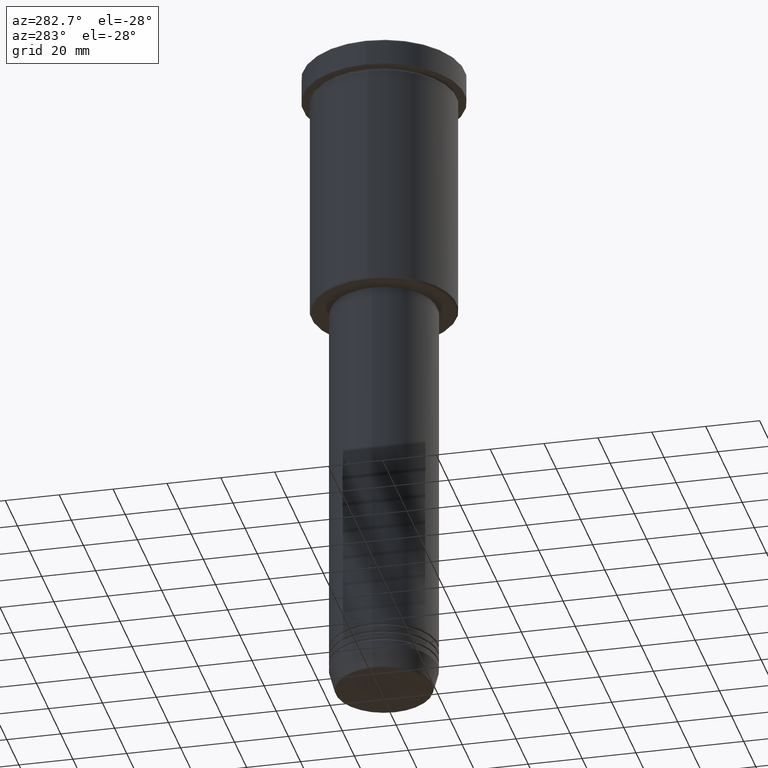
[diagram: clean part render]
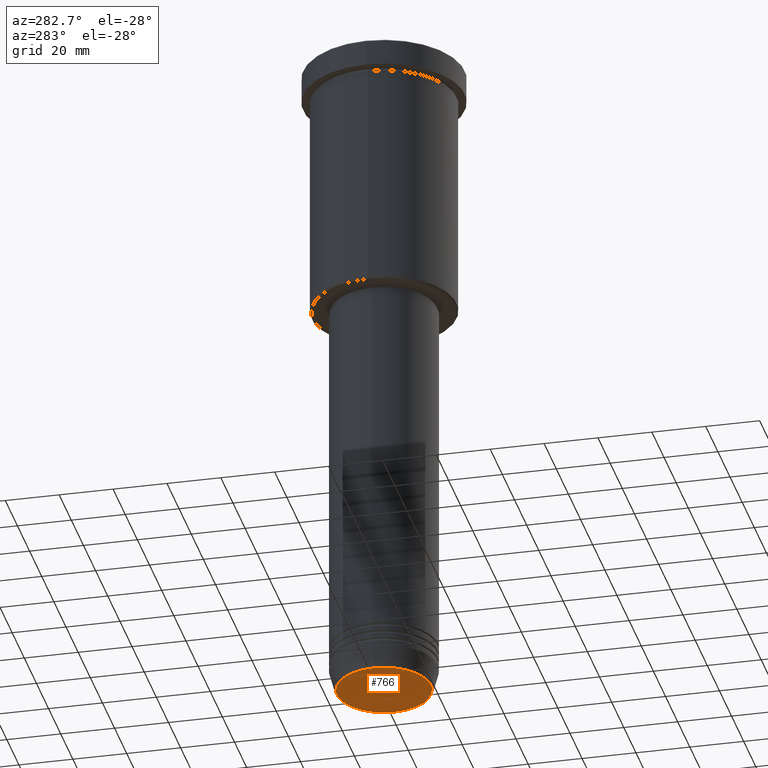
[diagram: same view with one face highlighted and labeled with its STEP entity id]
A machine part, auxiliary view. The second image highlights one B-rep face of the part: STEP entity #766.
In plain terms, the highlighted planar face has unit normal (0, -0, 1).
Its self-contained STEP definition (entity closure, byte-faithful):
#14 = PLANE ( 'NONE',  #1173 ) ;
#38 = EDGE_CURVE ( 'NONE', #685, #317, #499, .T. ) ;
#174 = DIRECTION ( 'NONE',  ( 1.000000000000000000, 0.000000000000000000, 0.000000000000000000 ) ) ;
#192 = EDGE_LOOP ( 'NONE', ( #895, #344 ) ) ;
#207 = DIRECTION ( 'NONE',  ( 0.000000000000000000, -0.000000000000000000, 1.000000000000000000 ) ) ;
#264 = CARTESIAN_POINT ( 'NONE',  ( 0.000000000000000000, 0.000000000000000000, -251.0000000000000000 ) ) ;
#317 = VERTEX_POINT ( 'NONE', #836 ) ;
#344 = ORIENTED_EDGE ( 'NONE', *, *, #1042, .T. ) ;
#477 = AXIS2_PLACEMENT_3D ( 'NONE', #264, #534, #1163 ) ;
#499 = CIRCLE ( 'NONE', #477, 17.47274296656154036 ) ;
#534 = DIRECTION ( 'NONE',  ( 0.000000000000000000, 0.000000000000000000, -1.000000000000000000 ) ) ;
#544 = CARTESIAN_POINT ( 'NONE',  ( 0.000000000000000000, 0.000000000000000000, -251.0000000000000000 ) ) ;
#664 = FACE_OUTER_BOUND ( 'NONE', #192, .T. ) ;
#669 = CARTESIAN_POINT ( 'NONE',  ( 17.47274296656154036, 0.000000000000000000, -251.0000000000000000 ) ) ;
#685 = VERTEX_POINT ( 'NONE', #669 ) ;
#715 = CIRCLE ( 'NONE', #870, 17.47274296656154036 ) ;
#722 = DIRECTION ( 'NONE',  ( 0.000000000000000000, 0.000000000000000000, -1.000000000000000000 ) ) ;
#740 = DIRECTION ( 'NONE',  ( 1.000000000000000000, 0.000000000000000000, 0.000000000000000000 ) ) ;
#766 = ADVANCED_FACE ( 'NONE', ( #664 ), #14, .F. ) ;
#836 = CARTESIAN_POINT ( 'NONE',  ( -17.47274296656154036, 2.169366823916869292E-15, -251.0000000000000000 ) ) ;
#870 = AXIS2_PLACEMENT_3D ( 'NONE', #544, #722, #174 ) ;
#895 = ORIENTED_EDGE ( 'NONE', *, *, #38, .T. ) ;
#1027 = CARTESIAN_POINT ( 'NONE',  ( 0.000000000000000000, 0.000000000000000000, -251.0000000000000000 ) ) ;
#1042 = EDGE_CURVE ( 'NONE', #317, #685, #715, .T. ) ;
#1163 = DIRECTION ( 'NONE',  ( 1.000000000000000000, 0.000000000000000000, 0.000000000000000000 ) ) ;
#1173 = AXIS2_PLACEMENT_3D ( 'NONE', #1027, #207, #740 ) ;